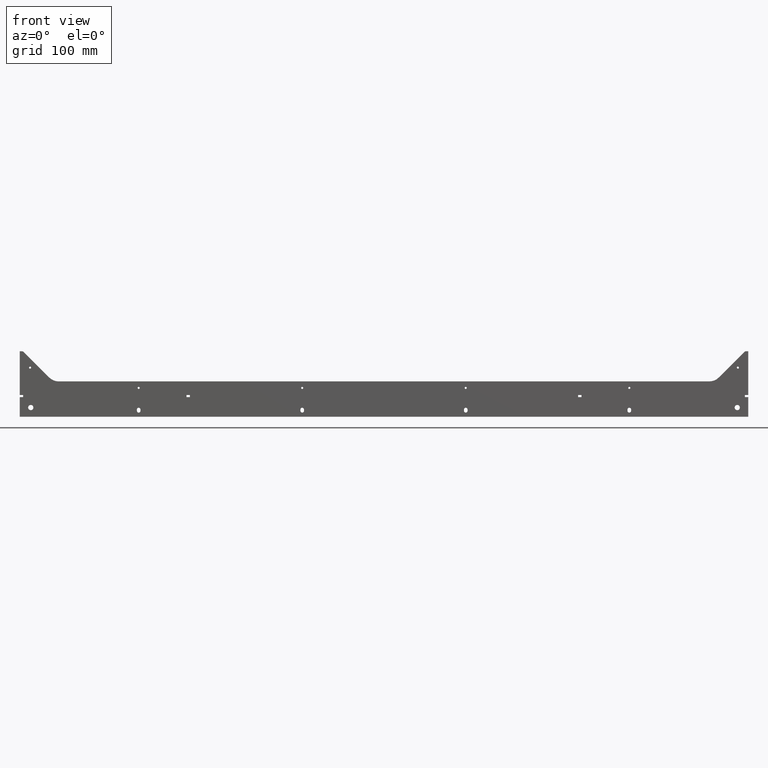
[diagram: clean part render]
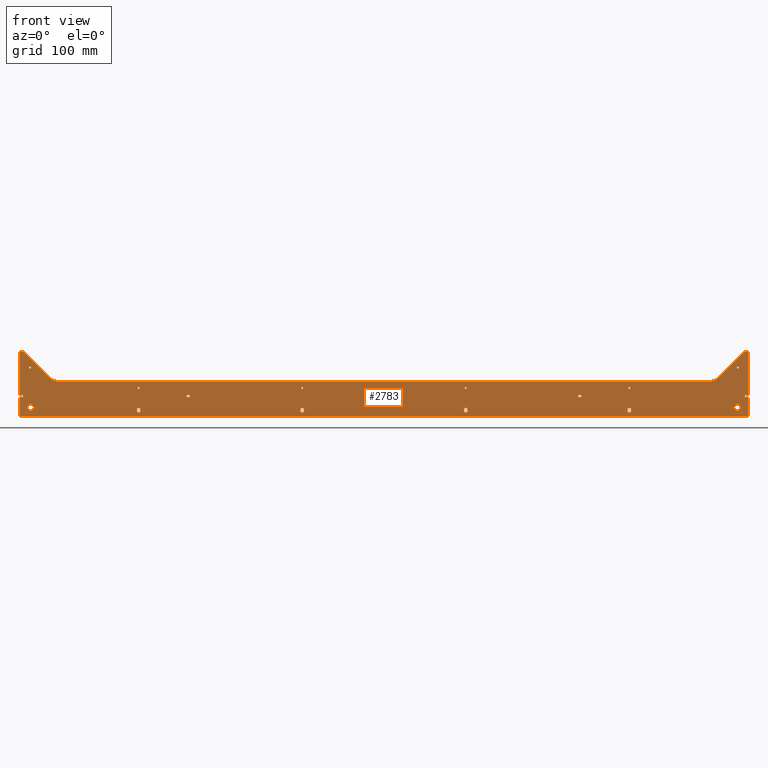
[diagram: same view with one face highlighted and labeled with its STEP entity id]
A machine part, front view. The second image highlights one B-rep face of the part: STEP entity #2783.
In plain terms, the highlighted planar face has unit normal (0, 1, 0).
Its self-contained STEP definition (entity closure, byte-faithful):
#1 = ORIENTED_EDGE ( 'NONE', *, *, #1935, .F. ) ;
#3 = DIRECTION ( 'NONE',  ( 1.000000000000000000, 0.000000000000000000, 0.000000000000000000 ) ) ;
#6 = ORIENTED_EDGE ( 'NONE', *, *, #419, .T. ) ;
#11 = FACE_BOUND ( 'NONE', #2842, .T. ) ;
#17 = CARTESIAN_POINT ( 'NONE',  ( 553.0464767191406281, -1091.305264068951146, -1200.899999999999864 ) ) ;
#30 = LINE ( 'NONE', #1099, #1881 ) ;
#32 = VERTEX_POINT ( 'NONE', #1494 ) ;
#33 = EDGE_CURVE ( 'NONE', #1542, #407, #2112, .T. ) ;
#34 = DIRECTION ( 'NONE',  ( 1.000000000000000000, 0.000000000000000000, 0.000000000000000000 ) ) ;
#43 = CIRCLE ( 'NONE', #494, 2.749999999999808153 ) ;
#47 = AXIS2_PLACEMENT_3D ( 'NONE', #3320, #2508, #934 ) ;
#53 = AXIS2_PLACEMENT_3D ( 'NONE', #1233, #2294, #3336 ) ;
#55 = CARTESIAN_POINT ( 'NONE',  ( -122.2500000000000853, -1091.305264068951146, -1224.999999999999091 ) ) ;
#71 = CIRCLE ( 'NONE', #53, 2.749999999999808153 ) ;
#73 = CARTESIAN_POINT ( 'NONE',  ( 497.5195647845589519, -1091.305264068951146, -1160.000000000000000 ) ) ;
#80 = VERTEX_POINT ( 'NONE', #621 ) ;
#82 = CARTESIAN_POINT ( 'NONE',  ( -540.9726412919829954, -1091.305264068951146, -1160.573330363768491 ) ) ;
#101 = VERTEX_POINT ( 'NONE', #2022 ) ;
#102 = CIRCLE ( 'NONE', #309, 5.200000000000093436 ) ;
#103 = CARTESIAN_POINT ( 'NONE',  ( 511.6617004082899598, -1091.305264068951146, -1174.142135623730610 ) ) ;
#104 = EDGE_CURVE ( 'NONE', #2498, #698, #3256, .T. ) ;
#108 = VERTEX_POINT ( 'NONE', #1687 ) ;
#118 = DIRECTION ( 'NONE',  ( 0.000000000000000000, 0.000000000000000000, 1.000000000000000000 ) ) ;
#127 = LINE ( 'NONE', #2469, #1553 ) ;
#139 = DIRECTION ( 'NONE',  ( -0.000000000000000000, -1.000000000000000000, -0.000000000000000000 ) ) ;
#146 = VERTEX_POINT ( 'NONE', #3125 ) ;
#148 = ORIENTED_EDGE ( 'NONE', *, *, #1367, .T. ) ;
#151 = CARTESIAN_POINT ( 'NONE',  ( -372.2500000000000568, -1091.305264068951146, -1224.999999999999091 ) ) ;
#166 = EDGE_CURVE ( 'NONE', #1137, #3142, #3106, .T. ) ;
#167 = VECTOR ( 'NONE', #980, 1000.000000000000000 ) ;
#169 = VERTEX_POINT ( 'NONE', #1569 ) ;
#170 = CARTESIAN_POINT ( 'NONE',  ( -556.8038360320209677, -1091.305264068951146, -1133.999999999999091 ) ) ;
#199 = DIRECTION ( 'NONE',  ( -1.000000000000000000, -0.000000000000000000, -0.000000000000000000 ) ) ;
#202 = CARTESIAN_POINT ( 'NONE',  ( 540.0000000000000000, -1091.305264068951146, -1225.200000000000045 ) ) ;
#209 = VERTEX_POINT ( 'NONE', #2867 ) ;
#210 = CIRCLE ( 'NONE', #1661, 2.749999999999808153 ) ;
#212 = VERTEX_POINT ( 'NONE', #1255 ) ;
#216 = AXIS2_PLACEMENT_3D ( 'NONE', #1160, #2520, #1961 ) ;
#224 = CARTESIAN_POINT ( 'NONE',  ( 553.0464767191406281, -1091.305264068951146, -1133.999999999999318 ) ) ;
#232 = ORIENTED_EDGE ( 'NONE', *, *, #741, .T. ) ;
#235 = EDGE_CURVE ( 'NONE', #2107, #707, #210, .T. ) ;
#237 = DIRECTION ( 'NONE',  ( 0.000000000000000000, 0.000000000000000000, -1.000000000000000000 ) ) ;
#242 = CARTESIAN_POINT ( 'NONE',  ( -301.8961408822090675, -1091.305264068951146, -1136.999999999999091 ) ) ;
#246 = VERTEX_POINT ( 'NONE', #2338 ) ;
#250 = EDGE_CURVE ( 'NONE', #1890, #2421, #2337, .T. ) ;
#263 = CARTESIAN_POINT ( 'NONE',  ( 553.0464767191406281, -1091.305264068951146, -1233.999999999999773 ) ) ;
#265 = CIRCLE ( 'NONE', #2060, 3.000000000000113687 ) ;
#274 = ORIENTED_EDGE ( 'NONE', *, *, #342, .T. ) ;
#279 = CARTESIAN_POINT ( 'NONE',  ( -553.0464767191404007, -1091.305264068951146, -1133.999999999999318 ) ) ;
#288 = EDGE_CURVE ( 'NONE', #2952, #2288, #567, .T. ) ;
#292 = CARTESIAN_POINT ( 'NONE',  ( 296.6961408822090789, -1091.305264068951146, -1204.100000000000136 ) ) ;
#309 = AXIS2_PLACEMENT_3D ( 'NONE', #2734, #2216, #3235 ) ;
#310 = VECTOR ( 'NONE', #2611, 1000.000000000000000 ) ;
#315 = VERTEX_POINT ( 'NONE', #292 ) ;
#319 = LINE ( 'NONE', #17, #1672 ) ;
#326 = VECTOR ( 'NONE', #1144, 1000.000000000000000 ) ;
#329 = EDGE_CURVE ( 'NONE', #707, #3190, #3435, .T. ) ;
#333 = CARTESIAN_POINT ( 'NONE',  ( 377.7499999999999432, -1091.305264068951146, -1224.999999999999091 ) ) ;
#334 = CARTESIAN_POINT ( 'NONE',  ( 511.6617004082899598, -1091.305264068951146, -1174.142135623730610 ) ) ;
#335 = LINE ( 'NONE', #662, #1727 ) ;
#338 = VERTEX_POINT ( 'NONE', #3207 ) ;
#342 = EDGE_CURVE ( 'NONE', #1023, #101, #1894, .T. ) ;
#346 = EDGE_CURVE ( 'NONE', #3190, #1273, #2278, .T. ) ;
#356 = CARTESIAN_POINT ( 'NONE',  ( -122.2500000000000853, -1091.305264068951146, -1224.999999999999091 ) ) ;
#358 = DIRECTION ( 'NONE',  ( -0.000000000000000000, -1.000000000000000000, -0.000000000000000000 ) ) ;
#359 = DIRECTION ( 'NONE',  ( -0.000000000000000000, -1.000000000000000000, -0.000000000000000000 ) ) ;
#360 = EDGE_CURVE ( 'NONE', #2330, #212, #1340, .T. ) ;
#368 = ORIENTED_EDGE ( 'NONE', *, *, #750, .T. ) ;
#370 = VECTOR ( 'NONE', #2872, 1000.000000000000000 ) ;
#387 = DIRECTION ( 'NONE',  ( -0.000000000000000000, -0.000000000000000000, -1.000000000000000000 ) ) ;
#403 = DIRECTION ( 'NONE',  ( -1.000000000000000000, -0.000000000000000000, -0.000000000000000000 ) ) ;
#404 = CARTESIAN_POINT ( 'NONE',  ( 372.2500000000000568, -1091.305264068951146, -1224.999999999999091 ) ) ;
#405 = VERTEX_POINT ( 'NONE', #2151 ) ;
#406 = DIRECTION ( 'NONE',  ( 0.000000000000000000, 0.000000000000000000, 1.000000000000000000 ) ) ;
#407 = VERTEX_POINT ( 'NONE', #812 ) ;
#416 = VERTEX_POINT ( 'NONE', #279 ) ;
#419 = EDGE_CURVE ( 'NONE', #1436, #927, #880, .T. ) ;
#422 = DIRECTION ( 'NONE',  ( -1.000000000000000000, -0.000000000000000000, -0.000000000000000000 ) ) ;
#427 = CARTESIAN_POINT ( 'NONE',  ( 377.7499999999999432, -1091.305264068951146, -1224.999999999999091 ) ) ;
#439 = DIRECTION ( 'NONE',  ( 0.000000000000000000, 0.000000000000000000, -1.000000000000000000 ) ) ;
#446 = EDGE_LOOP ( 'NONE', ( #2195, #2570, #1654, #2907, #1029 ) ) ;
#448 = EDGE_CURVE ( 'NONE', #472, #1798, #127, .T. ) ;
#449 = VERTEX_POINT ( 'NONE', #2019 ) ;
#472 = VERTEX_POINT ( 'NONE', #3071 ) ;
#475 = DIRECTION ( 'NONE',  ( 0.000000000000000000, 1.000000000000000000, 0.000000000000000000 ) ) ;
#477 = CARTESIAN_POINT ( 'NONE',  ( -125.0000000000000000, -1091.305264068951146, -1222.999999999999318 ) ) ;
#481 = VERTEX_POINT ( 'NONE', #1996 ) ;
#486 = VERTEX_POINT ( 'NONE', #1219 ) ;
#492 = CIRCLE ( 'NONE', #216, 1.600000000000267875 ) ;
#494 = AXIS2_PLACEMENT_3D ( 'NONE', #1526, #2353, #2296 ) ;
#496 = DIRECTION ( 'NONE',  ( -0.000000000000000000, -1.000000000000000000, -0.000000000000000000 ) ) ;
#499 = AXIS2_PLACEMENT_3D ( 'NONE', #773, #740, #439 ) ;
#503 = VERTEX_POINT ( 'NONE', #1740 ) ;
#516 = ORIENTED_EDGE ( 'NONE', *, *, #769, .T. ) ;
#518 = CARTESIAN_POINT ( 'NONE',  ( 375.0000000000000000, -1091.305264068951146, -1190.000000000000455 ) ) ;
#529 = EDGE_LOOP ( 'NONE', ( #784, #1195, #3439, #1641, #2565 ) ) ;
#530 = CARTESIAN_POINT ( 'NONE',  ( 122.2500000000000853, -1091.305264068951146, -1224.999999999999091 ) ) ;
#533 = ORIENTED_EDGE ( 'NONE', *, *, #1312, .T. ) ;
#535 = DIRECTION ( 'NONE',  ( 0.000000000000000000, 0.000000000000000000, 1.000000000000000000 ) ) ;
#542 = LINE ( 'NONE', #1858, #1291 ) ;
#546 = EDGE_CURVE ( 'NONE', #3418, #2958, #3377, .T. ) ;
#562 = EDGE_LOOP ( 'NONE', ( #3272, #3347 ) ) ;
#567 = LINE ( 'NONE', #1102, #1493 ) ;
#578 = EDGE_CURVE ( 'NONE', #2914, #405, #43, .T. ) ;
#601 = AXIS2_PLACEMENT_3D ( 'NONE', #818, #1882, #3446 ) ;
#602 = VERTEX_POINT ( 'NONE', #3371 ) ;
#604 = CIRCLE ( 'NONE', #2667, 2.749999999999808153 ) ;
#615 = VECTOR ( 'NONE', #2757, 1000.000000000000000 ) ;
#621 = CARTESIAN_POINT ( 'NONE',  ( -301.8961408822090675, -1091.305264068951146, -1200.900000000000091 ) ) ;
#626 = CARTESIAN_POINT ( 'NONE',  ( 553.0464767191406281, -1091.305264068951146, -1136.999999999999091 ) ) ;
#630 = DIRECTION ( 'NONE',  ( 0.000000000000000000, 0.000000000000000000, -1.000000000000000000 ) ) ;
#635 = CARTESIAN_POINT ( 'NONE',  ( 553.0464767191406281, -1091.305264068951146, -1204.100000000000136 ) ) ;
#639 = VERTEX_POINT ( 'NONE', #2035 ) ;
#646 = DIRECTION ( 'NONE',  ( -0.000000000000000000, -0.000000000000000000, -1.000000000000000000 ) ) ;
#660 = CIRCLE ( 'NONE', #2891, 2.749999999999808153 ) ;
#662 = CARTESIAN_POINT ( 'NONE',  ( -556.8038360320209677, -1091.305264068951146, -1136.999999999999091 ) ) ;
#664 = LINE ( 'NONE', #3314, #3324 ) ;
#666 = CARTESIAN_POINT ( 'NONE',  ( -497.5195647845589519, -1091.305264068951146, -1160.000000000000000 ) ) ;
#672 = ORIENTED_EDGE ( 'NONE', *, *, #2331, .T. ) ;
#675 = EDGE_CURVE ( 'NONE', #2817, #503, #998, .T. ) ;
#691 = ORIENTED_EDGE ( 'NONE', *, *, #2641, .T. ) ;
#698 = VERTEX_POINT ( 'NONE', #2589 ) ;
#707 = VERTEX_POINT ( 'NONE', #2554 ) ;
#710 = LINE ( 'NONE', #427, #167 ) ;
#717 = CIRCLE ( 'NONE', #1339, 1.600000000000267875 ) ;
#724 = DIRECTION ( 'NONE',  ( 0.000000000000000000, 0.000000000000000000, -1.000000000000000000 ) ) ;
#740 = DIRECTION ( 'NONE',  ( -0.000000000000000000, -1.000000000000000000, -0.000000000000000000 ) ) ;
#741 = EDGE_CURVE ( 'NONE', #80, #481, #822, .T. ) ;
#750 = EDGE_CURVE ( 'NONE', #449, #472, #1597, .T. ) ;
#758 = CARTESIAN_POINT ( 'NONE',  ( -511.6617004082899598, -1091.305264068951146, -1174.142135623730610 ) ) ;
#759 = VERTEX_POINT ( 'NONE', #2436 ) ;
#760 = LINE ( 'NONE', #1551, #2177 ) ;
#765 = CIRCLE ( 'NONE', #1660, 1.600000000000045830 ) ;
#769 = EDGE_CURVE ( 'NONE', #315, #449, #30, .T. ) ;
#773 = CARTESIAN_POINT ( 'NONE',  ( -375.0000000000000000, -1091.305264068951146, -1190.000000000000455 ) ) ;
#778 = DIRECTION ( 'NONE',  ( 0.000000000000000000, 1.000000000000000000, 0.000000000000000000 ) ) ;
#784 = ORIENTED_EDGE ( 'NONE', *, *, #2541, .T. ) ;
#789 = VERTEX_POINT ( 'NONE', #2918 ) ;
#793 = DIRECTION ( 'NONE',  ( 1.000000000000000000, 0.000000000000000000, 0.000000000000000000 ) ) ;
#797 = DIRECTION ( 'NONE',  ( 0.000000000000000000, 0.000000000000000000, 1.000000000000000000 ) ) ;
#805 = FACE_BOUND ( 'NONE', #1756, .T. ) ;
#812 = CARTESIAN_POINT ( 'NONE',  ( 540.0000000000000000, -1091.305264068951146, -1214.799999999999955 ) ) ;
#814 = EDGE_CURVE ( 'NONE', #503, #2817, #765, .T. ) ;
#818 = CARTESIAN_POINT ( 'NONE',  ( 125.0000000000000000, -1091.305264068951146, -1222.999999999999318 ) ) ;
#820 = VERTEX_POINT ( 'NONE', #3203 ) ;
#822 = LINE ( 'NONE', #1112, #1060 ) ;
#823 = DIRECTION ( 'NONE',  ( -0.000000000000000000, -1.000000000000000000, -0.000000000000000000 ) ) ;
#827 = CIRCLE ( 'NONE', #2118, 3.000000000000113687 ) ;
#850 = DIRECTION ( 'NONE',  ( 0.000000000000000000, 1.000000000000000000, 0.000000000000000000 ) ) ;
#852 = ORIENTED_EDGE ( 'NONE', *, *, #1554, .T. ) ;
#861 = CARTESIAN_POINT ( 'NONE',  ( -511.6617004082898461, -1091.305264068951146, -1174.142135623730610 ) ) ;
#862 = CARTESIAN_POINT ( 'NONE',  ( -125.0000000000000000, -1091.305264068951146, -1188.400000000000318 ) ) ;
#878 = VERTEX_POINT ( 'NONE', #930 ) ;
#880 = CIRCLE ( 'NONE', #2824, 20.00000000000001776 ) ;
#885 = VECTOR ( 'NONE', #3440, 1000.000000000000000 ) ;
#901 = DIRECTION ( 'NONE',  ( 0.000000000000000000, 0.000000000000000000, 1.000000000000000000 ) ) ;
#904 = LINE ( 'NONE', #1970, #615 ) ;
#906 = CARTESIAN_POINT ( 'NONE',  ( 553.0464767191406281, -1091.305264068951146, -1204.100000000000136 ) ) ;
#919 = EDGE_CURVE ( 'NONE', #108, #416, #827, .T. ) ;
#924 = ORIENTED_EDGE ( 'NONE', *, *, #1589, .T. ) ;
#927 = VERTEX_POINT ( 'NONE', #861 ) ;
#930 = CARTESIAN_POINT ( 'NONE',  ( -375.0000000000000000, -1091.305264068951146, -1220.249999999999545 ) ) ;
#934 = DIRECTION ( 'NONE',  ( 0.000000000000000000, 0.000000000000000000, -1.000000000000000000 ) ) ;
#939 = CARTESIAN_POINT ( 'NONE',  ( 301.8961408822090675, -1091.305264068951146, -1204.100000000000136 ) ) ;
#947 = LINE ( 'NONE', #1430, #2513 ) ;
#948 = VERTEX_POINT ( 'NONE', #1939 ) ;
#949 = VECTOR ( 'NONE', #3295, 1000.000000000000000 ) ;
#952 = CARTESIAN_POINT ( 'NONE',  ( 553.0464767191406281, -1091.305264068951146, -1180.000000000000000 ) ) ;
#954 = AXIS2_PLACEMENT_3D ( 'NONE', #1772, #475, #3139 ) ;
#962 = EDGE_LOOP ( 'NONE', ( #2313, #2307 ) ) ;
#965 = CARTESIAN_POINT ( 'NONE',  ( 497.5195647845589519, -1091.305264068951146, -1180.000000000000000 ) ) ;
#980 = DIRECTION ( 'NONE',  ( -0.000000000000000000, -0.000000000000000000, -1.000000000000000000 ) ) ;
#985 = EDGE_LOOP ( 'NONE', ( #1580, #2153 ) ) ;
#998 = CIRCLE ( 'NONE', #2709, 1.600000000000045830 ) ;
#1007 = VECTOR ( 'NONE', #422, 1000.000000000000000 ) ;
#1015 = DIRECTION ( 'NONE',  ( 0.000000000000000000, 0.000000000000000000, -1.000000000000000000 ) ) ;
#1016 = AXIS2_PLACEMENT_3D ( 'NONE', #2997, #139, #1162 ) ;
#1023 = VERTEX_POINT ( 'NONE', #2031 ) ;
#1029 = ORIENTED_EDGE ( 'NONE', *, *, #235, .T. ) ;
#1036 = CARTESIAN_POINT ( 'NONE',  ( -125.0000000000000000, -1091.305264068951146, -1190.000000000000455 ) ) ;
#1037 = LINE ( 'NONE', #2593, #1837 ) ;
#1051 = DIRECTION ( 'NONE',  ( -0.000000000000000000, -1.000000000000000000, -0.000000000000000000 ) ) ;
#1056 = ORIENTED_EDGE ( 'NONE', *, *, #2559, .F. ) ;
#1060 = VECTOR ( 'NONE', #793, 1000.000000000000000 ) ;
#1062 = CARTESIAN_POINT ( 'NONE',  ( 553.0464767191406281, -1091.305264068951146, -1136.999999999999091 ) ) ;
#1065 = ORIENTED_EDGE ( 'NONE', *, *, #675, .F. ) ;
#1070 = CIRCLE ( 'NONE', #1445, 5.200000000000093436 ) ;
#1071 = CARTESIAN_POINT ( 'NONE',  ( -125.0000000000000000, -1091.305264068951146, -1224.999999999999091 ) ) ;
#1076 = DIRECTION ( 'NONE',  ( 0.000000000000000000, 0.000000000000000000, 1.000000000000000000 ) ) ;
#1099 = CARTESIAN_POINT ( 'NONE',  ( 296.6961408822090789, -1091.305264068951146, -1136.999999999999091 ) ) ;
#1102 = CARTESIAN_POINT ( 'NONE',  ( 556.8038360320210813, -1091.305264068951146, -1136.999999999999091 ) ) ;
#1105 = VERTEX_POINT ( 'NONE', #151 ) ;
#1109 = ORIENTED_EDGE ( 'NONE', *, *, #2078, .T. ) ;
#1112 = CARTESIAN_POINT ( 'NONE',  ( 553.0464767191406281, -1091.305264068951146, -1200.900000000000091 ) ) ;
#1115 = VECTOR ( 'NONE', #2164, 1000.000000000000000 ) ;
#1123 = CIRCLE ( 'NONE', #47, 1.600000000000267875 ) ;
#1137 = VERTEX_POINT ( 'NONE', #1609 ) ;
#1144 = DIRECTION ( 'NONE',  ( -0.7071067811865425767, 0.000000000000000000, -0.7071067811865525687 ) ) ;
#1147 = DIRECTION ( 'NONE',  ( 0.000000000000000000, 0.000000000000000000, -1.000000000000000000 ) ) ;
#1149 = DIRECTION ( 'NONE',  ( 0.000000000000000000, 1.000000000000000000, -0.000000000000000000 ) ) ;
#1159 = EDGE_CURVE ( 'NONE', #3111, #1638, #2277, .T. ) ;
#1160 = CARTESIAN_POINT ( 'NONE',  ( -540.9726412919829954, -1091.305264068951146, -1158.973330363768127 ) ) ;
#1162 = DIRECTION ( 'NONE',  ( 0.000000000000000000, 0.000000000000000000, -1.000000000000000000 ) ) ;
#1176 = DIRECTION ( 'NONE',  ( 0.000000000000000000, 0.000000000000000000, -1.000000000000000000 ) ) ;
#1186 = EDGE_LOOP ( 'NONE', ( #3401, #2468, #1532, #2708, #3166, #148, #2033, #2926, #2253, #6, #1964, #2420, #2772, #2647, #691, #2692, #3017, #1812, #274, #2023 ) ) ;
#1187 = AXIS2_PLACEMENT_3D ( 'NONE', #1482, #2597, #1244 ) ;
#1194 = LINE ( 'NONE', #2248, #949 ) ;
#1195 = ORIENTED_EDGE ( 'NONE', *, *, #1584, .T. ) ;
#1203 = DIRECTION ( 'NONE',  ( -0.000000000000000000, -1.000000000000000000, -0.000000000000000000 ) ) ;
#1219 = CARTESIAN_POINT ( 'NONE',  ( 377.7499999999999432, -1091.305264068951146, -1222.999999999999318 ) ) ;
#1233 = CARTESIAN_POINT ( 'NONE',  ( 375.0000000000000000, -1091.305264068951146, -1222.999999999999318 ) ) ;
#1244 = DIRECTION ( 'NONE',  ( 0.000000000000000000, 0.000000000000000000, 1.000000000000000000 ) ) ;
#1255 = CARTESIAN_POINT ( 'NONE',  ( 122.2500000000000853, -1091.305264068951146, -1222.999999999999318 ) ) ;
#1261 = CARTESIAN_POINT ( 'NONE',  ( 556.8038360320210813, -1091.305264068951146, -1200.899999999999864 ) ) ;
#1273 = VERTEX_POINT ( 'NONE', #1578 ) ;
#1274 = EDGE_LOOP ( 'NONE', ( #924, #232, #852, #1109 ) ) ;
#1275 = LINE ( 'NONE', #1799, #885 ) ;
#1291 = VECTOR ( 'NONE', #2968, 1000.000000000000000 ) ;
#1297 = DIRECTION ( 'NONE',  ( -1.000000000000000000, -0.000000000000000000, -0.000000000000000000 ) ) ;
#1312 = EDGE_CURVE ( 'NONE', #759, #2330, #660, .T. ) ;
#1315 = ORIENTED_EDGE ( 'NONE', *, *, #1159, .T. ) ;
#1318 = FACE_BOUND ( 'NONE', #562, .T. ) ;
#1338 = AXIS2_PLACEMENT_3D ( 'NONE', #3403, #1605, #1345 ) ;
#1339 = AXIS2_PLACEMENT_3D ( 'NONE', #3417, #2889, #1015 ) ;
#1340 = LINE ( 'NONE', #530, #2393 ) ;
#1345 = DIRECTION ( 'NONE',  ( 0.000000000000000000, 0.000000000000000000, 1.000000000000000000 ) ) ;
#1347 = EDGE_CURVE ( 'NONE', #2428, #2346, #102, .T. ) ;
#1351 = DIRECTION ( 'NONE',  ( 0.000000000000000000, 1.000000000000000000, 0.000000000000000000 ) ) ;
#1352 = ORIENTED_EDGE ( 'NONE', *, *, #1815, .F. ) ;
#1356 = CARTESIAN_POINT ( 'NONE',  ( 125.0000000000000000, -1091.305264068951146, -1190.000000000000455 ) ) ;
#1357 = CARTESIAN_POINT ( 'NONE',  ( 122.2500000000000853, -1091.305264068951146, -1224.999999999999091 ) ) ;
#1359 = CARTESIAN_POINT ( 'NONE',  ( -377.7499999999999432, -1091.305264068951146, -1222.999999999999318 ) ) ;
#1367 = EDGE_CURVE ( 'NONE', #169, #2231, #265, .T. ) ;
#1369 = DIRECTION ( 'NONE',  ( 1.000000000000000000, 0.000000000000000000, 0.000000000000000000 ) ) ;
#1375 = VERTEX_POINT ( 'NONE', #1429 ) ;
#1381 = CARTESIAN_POINT ( 'NONE',  ( -125.0000000000000000, -1091.305264068951146, -1190.000000000000455 ) ) ;
#1405 = DIRECTION ( 'NONE',  ( -0.000000000000000000, -0.000000000000000000, -1.000000000000000000 ) ) ;
#1406 = LINE ( 'NONE', #404, #2517 ) ;
#1408 = VERTEX_POINT ( 'NONE', #2995 ) ;
#1411 = EDGE_CURVE ( 'NONE', #3039, #32, #335, .T. ) ;
#1429 = CARTESIAN_POINT ( 'NONE',  ( 375.0000000000000000, -1091.305264068951146, -1188.400000000000318 ) ) ;
#1430 = CARTESIAN_POINT ( 'NONE',  ( 551.6961408822093063, -1091.305264068951146, -1136.999999999999091 ) ) ;
#1436 = VERTEX_POINT ( 'NONE', #2769 ) ;
#1444 = VECTOR ( 'NONE', #1076, 1000.000000000000000 ) ;
#1445 = AXIS2_PLACEMENT_3D ( 'NONE', #3089, #359, #3342 ) ;
#1450 = DIRECTION ( 'NONE',  ( 0.000000000000000000, 1.000000000000000000, 0.000000000000000000 ) ) ;
#1451 = AXIS2_PLACEMENT_3D ( 'NONE', #3192, #2982, #1633 ) ;
#1476 = EDGE_CURVE ( 'NONE', #2047, #2902, #492, .T. ) ;
#1481 = ORIENTED_EDGE ( 'NONE', *, *, #814, .F. ) ;
#1482 = CARTESIAN_POINT ( 'NONE',  ( 125.0000000000000000, -1091.305264068951146, -1222.999999999999318 ) ) ;
#1492 = VECTOR ( 'NONE', #1369, 1000.000000000000000 ) ;
#1493 = VECTOR ( 'NONE', #797, 1000.000000000000000 ) ;
#1494 = CARTESIAN_POINT ( 'NONE',  ( -556.8038360320209677, -1091.305264068951146, -1200.900000000000091 ) ) ;
#1500 = AXIS2_PLACEMENT_3D ( 'NONE', #73, #1149, #2208 ) ;
#1503 = VECTOR ( 'NONE', #403, 1000.000000000000000 ) ;
#1513 = EDGE_CURVE ( 'NONE', #2598, #1375, #2557, .T. ) ;
#1526 = CARTESIAN_POINT ( 'NONE',  ( 375.0000000000000000, -1091.305264068951146, -1224.999999999999091 ) ) ;
#1528 = LINE ( 'NONE', #103, #326 ) ;
#1532 = ORIENTED_EDGE ( 'NONE', *, *, #2361, .T. ) ;
#1533 = DIRECTION ( 'NONE',  ( -0.000000000000000000, -1.000000000000000000, -0.000000000000000000 ) ) ;
#1542 = VERTEX_POINT ( 'NONE', #202 ) ;
#1547 = LINE ( 'NONE', #758, #310 ) ;
#1551 = CARTESIAN_POINT ( 'NONE',  ( -377.7499999999999432, -1091.305264068951146, -1224.999999999999091 ) ) ;
#1553 = VECTOR ( 'NONE', #1405, 1000.000000000000000 ) ;
#1554 = EDGE_CURVE ( 'NONE', #481, #1408, #1275, .T. ) ;
#1561 = EDGE_CURVE ( 'NONE', #2881, #1988, #760, .T. ) ;
#1569 = CARTESIAN_POINT ( 'NONE',  ( 553.0464767191406281, -1091.305264068951146, -1133.999999999999091 ) ) ;
#1571 = ORIENTED_EDGE ( 'NONE', *, *, #33, .F. ) ;
#1578 = CARTESIAN_POINT ( 'NONE',  ( -127.7499999999999147, -1091.305264068951146, -1224.999999999999091 ) ) ;
#1580 = ORIENTED_EDGE ( 'NONE', *, *, #2378, .F. ) ;
#1584 = EDGE_CURVE ( 'NONE', #1105, #2881, #2829, .T. ) ;
#1587 = DIRECTION ( 'NONE',  ( -0.000000000000000000, -1.000000000000000000, -0.000000000000000000 ) ) ;
#1589 = EDGE_CURVE ( 'NONE', #602, #80, #3182, .T. ) ;
#1597 = LINE ( 'NONE', #2189, #1492 ) ;
#1605 = DIRECTION ( 'NONE',  ( 0.000000000000000000, 1.000000000000000000, 0.000000000000000000 ) ) ;
#1609 = CARTESIAN_POINT ( 'NONE',  ( 556.8038360320210813, -1091.305264068951146, -1204.099999999999909 ) ) ;
#1614 = CARTESIAN_POINT ( 'NONE',  ( -540.0000000000000000, -1091.305264068951146, -1214.799999999999955 ) ) ;
#1615 = EDGE_LOOP ( 'NONE', ( #1729, #533, #2836, #1652, #1315 ) ) ;
#1620 = EDGE_CURVE ( 'NONE', #146, #1023, #2380, .T. ) ;
#1629 = EDGE_CURVE ( 'NONE', #416, #3039, #2614, .T. ) ;
#1633 = DIRECTION ( 'NONE',  ( 0.000000000000000000, 0.000000000000000000, 1.000000000000000000 ) ) ;
#1638 = VERTEX_POINT ( 'NONE', #2100 ) ;
#1641 = ORIENTED_EDGE ( 'NONE', *, *, #2219, .T. ) ;
#1652 = ORIENTED_EDGE ( 'NONE', *, *, #3044, .T. ) ;
#1654 = ORIENTED_EDGE ( 'NONE', *, *, #3189, .T. ) ;
#1660 = AXIS2_PLACEMENT_3D ( 'NONE', #1356, #2701, #1841 ) ;
#1661 = AXIS2_PLACEMENT_3D ( 'NONE', #477, #778, #2888 ) ;
#1672 = VECTOR ( 'NONE', #3, 1000.000000000000000 ) ;
#1677 = AXIS2_PLACEMENT_3D ( 'NONE', #1711, #1450, #118 ) ;
#1683 = DIRECTION ( 'NONE',  ( -0.000000000000000000, 1.000000000000000000, -0.000000000000000000 ) ) ;
#1687 = CARTESIAN_POINT ( 'NONE',  ( -550.9251563755809684, -1091.305264068951146, -1134.878679656439544 ) ) ;
#1692 = DIRECTION ( 'NONE',  ( 0.000000000000000000, 1.000000000000000000, 0.000000000000000000 ) ) ;
#1694 = EDGE_LOOP ( 'NONE', ( #1056, #3068 ) ) ;
#1705 = CARTESIAN_POINT ( 'NONE',  ( -375.0000000000000000, -1091.305264068951146, -1222.999999999999318 ) ) ;
#1711 = CARTESIAN_POINT ( 'NONE',  ( -125.0000000000000000, -1091.305264068951146, -1222.999999999999318 ) ) ;
#1725 = CARTESIAN_POINT ( 'NONE',  ( -551.6961408822093063, -1091.305264068951146, -1136.999999999999091 ) ) ;
#1727 = VECTOR ( 'NONE', #646, 1000.000000000000000 ) ;
#1729 = ORIENTED_EDGE ( 'NONE', *, *, #1839, .T. ) ;
#1732 = EDGE_LOOP ( 'NONE', ( #2855, #1801, #3317, #2720, #672 ) ) ;
#1736 = CARTESIAN_POINT ( 'NONE',  ( 540.9726412919829954, -1091.305264068951146, -1157.373330363767991 ) ) ;
#1740 = CARTESIAN_POINT ( 'NONE',  ( 125.0000000000000000, -1091.305264068951146, -1188.400000000000318 ) ) ;
#1756 = EDGE_LOOP ( 'NONE', ( #1352, #1571 ) ) ;
#1771 = DIRECTION ( 'NONE',  ( -0.000000000000000000, -1.000000000000000000, -0.000000000000000000 ) ) ;
#1772 = CARTESIAN_POINT ( 'NONE',  ( -375.0000000000000000, -1091.305264068951146, -1222.999999999999318 ) ) ;
#1773 = EDGE_CURVE ( 'NONE', #338, #146, #2797, .T. ) ;
#1774 = AXIS2_PLACEMENT_3D ( 'NONE', #2758, #358, #3074 ) ;
#1780 = CARTESIAN_POINT ( 'NONE',  ( -372.2500000000000568, -1091.305264068951146, -1222.999999999999318 ) ) ;
#1782 = VECTOR ( 'NONE', #387, 1000.000000000000000 ) ;
#1792 = EDGE_CURVE ( 'NONE', #878, #2972, #604, .T. ) ;
#1798 = VERTEX_POINT ( 'NONE', #939 ) ;
#1799 = CARTESIAN_POINT ( 'NONE',  ( -296.6961408822090789, -1091.305264068951146, -1136.999999999999091 ) ) ;
#1801 = ORIENTED_EDGE ( 'NONE', *, *, #578, .T. ) ;
#1812 = ORIENTED_EDGE ( 'NONE', *, *, #1620, .T. ) ;
#1813 = CARTESIAN_POINT ( 'NONE',  ( -556.8038360320209677, -1091.305264068951146, -1136.999999999999091 ) ) ;
#1815 = EDGE_CURVE ( 'NONE', #407, #1542, #1070, .T. ) ;
#1824 = DIRECTION ( 'NONE',  ( -1.000000000000000000, -0.000000000000000000, -0.000000000000000000 ) ) ;
#1837 = VECTOR ( 'NONE', #199, 1000.000000000000000 ) ;
#1839 = EDGE_CURVE ( 'NONE', #1638, #759, #1194, .T. ) ;
#1840 = VECTOR ( 'NONE', #2240, 1000.000000000000000 ) ;
#1841 = DIRECTION ( 'NONE',  ( 0.000000000000000000, 0.000000000000000000, -1.000000000000000000 ) ) ;
#1853 = FACE_BOUND ( 'NONE', #1615, .T. ) ;
#1855 = EDGE_CURVE ( 'NONE', #820, #338, #3037, .T. ) ;
#1858 = CARTESIAN_POINT ( 'NONE',  ( 553.0464767191406281, -1091.305264068951146, -1133.999999999999091 ) ) ;
#1861 = CARTESIAN_POINT ( 'NONE',  ( -125.0000000000000000, -1091.305264068951146, -1191.600000000000364 ) ) ;
#1867 = FACE_BOUND ( 'NONE', #3005, .T. ) ;
#1873 = EDGE_CURVE ( 'NONE', #927, #108, #1547, .T. ) ;
#1876 = EDGE_CURVE ( 'NONE', #2902, #2047, #717, .T. ) ;
#1881 = VECTOR ( 'NONE', #2128, 1000.000000000000000 ) ;
#1882 = DIRECTION ( 'NONE',  ( 0.000000000000000000, 1.000000000000000000, 0.000000000000000000 ) ) ;
#1890 = VERTEX_POINT ( 'NONE', #1861 ) ;
#1891 = AXIS2_PLACEMENT_3D ( 'NONE', #518, #1533, #2395 ) ;
#1894 = LINE ( 'NONE', #263, #3433 ) ;
#1917 = EDGE_CURVE ( 'NONE', #1798, #315, #1037, .T. ) ;
#1920 = FACE_BOUND ( 'NONE', #446, .T. ) ;
#1922 = EDGE_CURVE ( 'NONE', #2106, #789, #2834, .T. ) ;
#1935 = EDGE_CURVE ( 'NONE', #2346, #2428, #2284, .T. ) ;
#1939 = CARTESIAN_POINT ( 'NONE',  ( 375.0000000000000000, -1091.305264068951146, -1220.249999999999545 ) ) ;
#1947 = AXIS2_PLACEMENT_3D ( 'NONE', #2376, #1587, #3436 ) ;
#1961 = DIRECTION ( 'NONE',  ( 0.000000000000000000, 0.000000000000000000, -1.000000000000000000 ) ) ;
#1964 = ORIENTED_EDGE ( 'NONE', *, *, #1873, .T. ) ;
#1968 = LINE ( 'NONE', #635, #1503 ) ;
#1970 = CARTESIAN_POINT ( 'NONE',  ( -127.7499999999999147, -1091.305264068951146, -1224.999999999999091 ) ) ;
#1980 = CARTESIAN_POINT ( 'NONE',  ( 556.8038360320210813, -1091.305264068951146, -1136.999999999999091 ) ) ;
#1987 = CARTESIAN_POINT ( 'NONE',  ( 540.0000000000000000, -1091.305264068951146, -1220.000000000000000 ) ) ;
#1988 = VERTEX_POINT ( 'NONE', #1359 ) ;
#1996 = CARTESIAN_POINT ( 'NONE',  ( -296.6961408822090789, -1091.305264068951146, -1200.900000000000091 ) ) ;
#2002 = DIRECTION ( 'NONE',  ( 0.000000000000000000, 1.000000000000000000, 0.000000000000000000 ) ) ;
#2009 = DIRECTION ( 'NONE',  ( 0.000000000000000000, 0.000000000000000000, 1.000000000000000000 ) ) ;
#2019 = CARTESIAN_POINT ( 'NONE',  ( 296.6961408822090789, -1091.305264068951146, -1200.900000000000091 ) ) ;
#2020 = CARTESIAN_POINT ( 'NONE',  ( -125.0000000000000000, -1091.305264068951146, -1220.249999999999545 ) ) ;
#2022 = CARTESIAN_POINT ( 'NONE',  ( 556.8038360320210813, -1091.305264068951146, -1233.999999999999773 ) ) ;
#2023 = ORIENTED_EDGE ( 'NONE', *, *, #2494, .T. ) ;
#2031 = CARTESIAN_POINT ( 'NONE',  ( -556.8038360320209677, -1091.305264068951146, -1233.999999999999773 ) ) ;
#2033 = ORIENTED_EDGE ( 'NONE', *, *, #3374, .T. ) ;
#2035 = CARTESIAN_POINT ( 'NONE',  ( 551.6961408822093063, -1091.305264068951146, -1200.899999999999864 ) ) ;
#2044 = DIRECTION ( 'NONE',  ( 1.000000000000000000, 0.000000000000000000, 0.000000000000000000 ) ) ;
#2047 = VERTEX_POINT ( 'NONE', #2193 ) ;
#2049 = CARTESIAN_POINT ( 'NONE',  ( 556.8038360320210813, -1091.305264068951146, -1133.999999999999091 ) ) ;
#2054 = VECTOR ( 'NONE', #1824, 1000.000000000000000 ) ;
#2060 = AXIS2_PLACEMENT_3D ( 'NONE', #626, #2763, #1176 ) ;
#2066 = CARTESIAN_POINT ( 'NONE',  ( 553.0464767191406281, -1091.305264068951146, -1200.900000000000091 ) ) ;
#2078 = EDGE_CURVE ( 'NONE', #1408, #602, #1968, .T. ) ;
#2098 = EDGE_CURVE ( 'NONE', #698, #2498, #1123, .T. ) ;
#2100 = CARTESIAN_POINT ( 'NONE',  ( 127.7499999999999147, -1091.305264068951146, -1222.999999999999318 ) ) ;
#2106 = VERTEX_POINT ( 'NONE', #2540 ) ;
#2107 = VERTEX_POINT ( 'NONE', #2020 ) ;
#2112 = CIRCLE ( 'NONE', #2273, 5.200000000000093436 ) ;
#2114 = AXIS2_PLACEMENT_3D ( 'NONE', #1036, #496, #237 ) ;
#2118 = AXIS2_PLACEMENT_3D ( 'NONE', #2521, #1203, #630 ) ;
#2128 = DIRECTION ( 'NONE',  ( 0.000000000000000000, 0.000000000000000000, 1.000000000000000000 ) ) ;
#2132 = DIRECTION ( 'NONE',  ( 0.000000000000000000, 0.000000000000000000, 1.000000000000000000 ) ) ;
#2151 = CARTESIAN_POINT ( 'NONE',  ( 372.2500000000000568, -1091.305264068951146, -1224.999999999999091 ) ) ;
#2153 = ORIENTED_EDGE ( 'NONE', *, *, #250, .F. ) ;
#2157 = FACE_BOUND ( 'NONE', #985, .T. ) ;
#2162 = CARTESIAN_POINT ( 'NONE',  ( -540.0000000000000000, -1091.305264068951146, -1225.200000000000045 ) ) ;
#2164 = DIRECTION ( 'NONE',  ( -0.000000000000000000, -0.000000000000000000, -1.000000000000000000 ) ) ;
#2177 = VECTOR ( 'NONE', #535, 1000.000000000000000 ) ;
#2178 = EDGE_CURVE ( 'NONE', #789, #2106, #2452, .T. ) ;
#2189 = CARTESIAN_POINT ( 'NONE',  ( 553.0464767191406281, -1091.305264068951146, -1200.900000000000091 ) ) ;
#2192 = DIRECTION ( 'NONE',  ( 0.000000000000000000, 0.000000000000000000, 1.000000000000000000 ) ) ;
#2193 = CARTESIAN_POINT ( 'NONE',  ( -540.9726412919829954, -1091.305264068951146, -1157.373330363767991 ) ) ;
#2195 = ORIENTED_EDGE ( 'NONE', *, *, #329, .T. ) ;
#2208 = DIRECTION ( 'NONE',  ( 0.000000000000000000, 0.000000000000000000, 1.000000000000000000 ) ) ;
#2216 = DIRECTION ( 'NONE',  ( -0.000000000000000000, -1.000000000000000000, -0.000000000000000000 ) ) ;
#2219 = EDGE_CURVE ( 'NONE', #1988, #878, #3382, .T. ) ;
#2231 = VERTEX_POINT ( 'NONE', #3394 ) ;
#2234 = CARTESIAN_POINT ( 'NONE',  ( 125.0000000000000000, -1091.305264068951146, -1224.999999999999091 ) ) ;
#2240 = DIRECTION ( 'NONE',  ( 0.000000000000000000, 0.000000000000000000, 1.000000000000000000 ) ) ;
#2248 = CARTESIAN_POINT ( 'NONE',  ( 127.7499999999999147, -1091.305264068951146, -1224.999999999999091 ) ) ;
#2253 = ORIENTED_EDGE ( 'NONE', *, *, #2473, .T. ) ;
#2273 = AXIS2_PLACEMENT_3D ( 'NONE', #1987, #3277, #2816 ) ;
#2277 = CIRCLE ( 'NONE', #601, 2.749999999999808153 ) ;
#2278 = CIRCLE ( 'NONE', #3210, 2.749999999999808153 ) ;
#2284 = CIRCLE ( 'NONE', #1947, 5.200000000000093436 ) ;
#2288 = VERTEX_POINT ( 'NONE', #2049 ) ;
#2291 = CIRCLE ( 'NONE', #1016, 1.600000000000045830 ) ;
#2294 = DIRECTION ( 'NONE',  ( 0.000000000000000000, 1.000000000000000000, 0.000000000000000000 ) ) ;
#2296 = DIRECTION ( 'NONE',  ( 0.000000000000000000, 0.000000000000000000, 1.000000000000000000 ) ) ;
#2307 = ORIENTED_EDGE ( 'NONE', *, *, #1876, .F. ) ;
#2313 = ORIENTED_EDGE ( 'NONE', *, *, #1476, .F. ) ;
#2326 = EDGE_CURVE ( 'NONE', #2288, #169, #542, .T. ) ;
#2330 = VERTEX_POINT ( 'NONE', #1357 ) ;
#2331 = EDGE_CURVE ( 'NONE', #948, #486, #2564, .T. ) ;
#2337 = CIRCLE ( 'NONE', #2114, 1.600000000000045830 ) ;
#2338 = CARTESIAN_POINT ( 'NONE',  ( -127.7499999999999147, -1091.305264068951146, -1222.999999999999318 ) ) ;
#2346 = VERTEX_POINT ( 'NONE', #1614 ) ;
#2353 = DIRECTION ( 'NONE',  ( 0.000000000000000000, 1.000000000000000000, 0.000000000000000000 ) ) ;
#2360 = CARTESIAN_POINT ( 'NONE',  ( -375.0000000000000000, -1091.305264068951146, -1190.000000000000455 ) ) ;
#2361 = EDGE_CURVE ( 'NONE', #639, #2952, #319, .T. ) ;
#2376 = CARTESIAN_POINT ( 'NONE',  ( -540.0000000000000000, -1091.305264068951146, -1220.000000000000000 ) ) ;
#2378 = EDGE_CURVE ( 'NONE', #2421, #1890, #2405, .T. ) ;
#2380 = LINE ( 'NONE', #1813, #370 ) ;
#2384 = CARTESIAN_POINT ( 'NONE',  ( 125.0000000000000000, -1091.305264068951146, -1191.600000000000364 ) ) ;
#2393 = VECTOR ( 'NONE', #2192, 1000.000000000000000 ) ;
#2395 = DIRECTION ( 'NONE',  ( 0.000000000000000000, 0.000000000000000000, -1.000000000000000000 ) ) ;
#2399 = FACE_BOUND ( 'NONE', #1274, .T. ) ;
#2405 = CIRCLE ( 'NONE', #3110, 1.600000000000045830 ) ;
#2420 = ORIENTED_EDGE ( 'NONE', *, *, #919, .T. ) ;
#2421 = VERTEX_POINT ( 'NONE', #862 ) ;
#2428 = VERTEX_POINT ( 'NONE', #2162 ) ;
#2431 = FACE_BOUND ( 'NONE', #962, .T. ) ;
#2436 = CARTESIAN_POINT ( 'NONE',  ( 127.7499999999999147, -1091.305264068951146, -1224.999999999999091 ) ) ;
#2447 = FACE_BOUND ( 'NONE', #1732, .T. ) ;
#2452 = CIRCLE ( 'NONE', #499, 1.600000000000045830 ) ;
#2468 = ORIENTED_EDGE ( 'NONE', *, *, #2832, .T. ) ;
#2469 = CARTESIAN_POINT ( 'NONE',  ( 301.8961408822090675, -1091.305264068951146, -1136.999999999999091 ) ) ;
#2473 = EDGE_CURVE ( 'NONE', #2958, #1436, #3251, .T. ) ;
#2491 = DIRECTION ( 'NONE',  ( 0.000000000000000000, 0.000000000000000000, 1.000000000000000000 ) ) ;
#2494 = EDGE_CURVE ( 'NONE', #101, #1137, #2791, .T. ) ;
#2498 = VERTEX_POINT ( 'NONE', #1736 ) ;
#2503 = CARTESIAN_POINT ( 'NONE',  ( 375.0000000000000000, -1091.305264068951146, -1191.600000000000364 ) ) ;
#2508 = DIRECTION ( 'NONE',  ( -0.000000000000000000, -1.000000000000000000, -0.000000000000000000 ) ) ;
#2513 = VECTOR ( 'NONE', #2009, 1000.000000000000000 ) ;
#2517 = VECTOR ( 'NONE', #2491, 1000.000000000000000 ) ;
#2520 = DIRECTION ( 'NONE',  ( -0.000000000000000000, -1.000000000000000000, -0.000000000000000000 ) ) ;
#2521 = CARTESIAN_POINT ( 'NONE',  ( -553.0464767191406281, -1091.305264068951146, -1136.999999999999091 ) ) ;
#2540 = CARTESIAN_POINT ( 'NONE',  ( -375.0000000000000000, -1091.305264068951146, -1191.600000000000364 ) ) ;
#2541 = EDGE_CURVE ( 'NONE', #2972, #1105, #664, .T. ) ;
#2554 = CARTESIAN_POINT ( 'NONE',  ( -122.2500000000000853, -1091.305264068951146, -1222.999999999999318 ) ) ;
#2557 = CIRCLE ( 'NONE', #1891, 1.600000000000045830 ) ;
#2559 = EDGE_CURVE ( 'NONE', #1375, #2598, #2291, .T. ) ;
#2561 = ORIENTED_EDGE ( 'NONE', *, *, #1347, .F. ) ;
#2564 = CIRCLE ( 'NONE', #1451, 2.749999999999808153 ) ;
#2565 = ORIENTED_EDGE ( 'NONE', *, *, #1792, .T. ) ;
#2570 = ORIENTED_EDGE ( 'NONE', *, *, #346, .T. ) ;
#2589 = CARTESIAN_POINT ( 'NONE',  ( 540.9726412919829954, -1091.305264068951146, -1160.573330363768491 ) ) ;
#2593 = CARTESIAN_POINT ( 'NONE',  ( 553.0464767191406281, -1091.305264068951146, -1204.100000000000136 ) ) ;
#2597 = DIRECTION ( 'NONE',  ( 0.000000000000000000, 1.000000000000000000, 0.000000000000000000 ) ) ;
#2598 = VERTEX_POINT ( 'NONE', #2503 ) ;
#2611 = DIRECTION ( 'NONE',  ( -0.7071067811865425767, -0.000000000000000000, 0.7071067811865525687 ) ) ;
#2614 = LINE ( 'NONE', #224, #2774 ) ;
#2621 = VECTOR ( 'NONE', #3031, 1000.000000000000000 ) ;
#2641 = EDGE_CURVE ( 'NONE', #32, #820, #3351, .T. ) ;
#2642 = CARTESIAN_POINT ( 'NONE',  ( 553.0464767191406281, -1091.305264068951146, -1204.099999999999909 ) ) ;
#2647 = ORIENTED_EDGE ( 'NONE', *, *, #1411, .T. ) ;
#2665 = FACE_BOUND ( 'NONE', #3352, .T. ) ;
#2667 = AXIS2_PLACEMENT_3D ( 'NONE', #1705, #2002, #406 ) ;
#2673 = AXIS2_PLACEMENT_3D ( 'NONE', #1062, #1351, #2684 ) ;
#2675 = CIRCLE ( 'NONE', #1187, 2.749999999999808153 ) ;
#2684 = DIRECTION ( 'NONE',  ( 0.000000000000000000, 0.000000000000000000, 1.000000000000000000 ) ) ;
#2686 = EDGE_CURVE ( 'NONE', #209, #948, #71, .T. ) ;
#2692 = ORIENTED_EDGE ( 'NONE', *, *, #1855, .T. ) ;
#2701 = DIRECTION ( 'NONE',  ( -0.000000000000000000, -1.000000000000000000, -0.000000000000000000 ) ) ;
#2708 = ORIENTED_EDGE ( 'NONE', *, *, #288, .T. ) ;
#2709 = AXIS2_PLACEMENT_3D ( 'NONE', #3138, #1771, #2812 ) ;
#2720 = ORIENTED_EDGE ( 'NONE', *, *, #2686, .T. ) ;
#2727 = CIRCLE ( 'NONE', #1677, 2.749999999999808153 ) ;
#2734 = CARTESIAN_POINT ( 'NONE',  ( -540.0000000000000000, -1091.305264068951146, -1220.000000000000000 ) ) ;
#2757 = DIRECTION ( 'NONE',  ( 0.000000000000000000, 0.000000000000000000, 1.000000000000000000 ) ) ;
#2758 = CARTESIAN_POINT ( 'NONE',  ( 540.9726412919829954, -1091.305264068951146, -1158.973330363768127 ) ) ;
#2763 = DIRECTION ( 'NONE',  ( -0.000000000000000000, -1.000000000000000000, -0.000000000000000000 ) ) ;
#2769 = CARTESIAN_POINT ( 'NONE',  ( -497.5195647845588383, -1091.305264068951146, -1180.000000000000000 ) ) ;
#2771 = DIRECTION ( 'NONE',  ( -0.000000000000000000, -0.000000000000000000, -1.000000000000000000 ) ) ;
#2772 = ORIENTED_EDGE ( 'NONE', *, *, #1629, .T. ) ;
#2774 = VECTOR ( 'NONE', #1297, 1000.000000000000000 ) ;
#2783 = ADVANCED_FACE ( 'NONE', ( #1853, #2447, #1920, #3447, #2399, #2963, #3186, #805, #2157, #1318, #11, #2945, #1867, #2431, #2665 ), #3426, .F. ) ;
#2791 = LINE ( 'NONE', #1980, #1840 ) ;
#2797 = LINE ( 'NONE', #906, #1007 ) ;
#2812 = DIRECTION ( 'NONE',  ( 0.000000000000000000, 0.000000000000000000, -1.000000000000000000 ) ) ;
#2816 = DIRECTION ( 'NONE',  ( 0.000000000000000000, 0.000000000000000000, -1.000000000000000000 ) ) ;
#2817 = VERTEX_POINT ( 'NONE', #2384 ) ;
#2820 = ORIENTED_EDGE ( 'NONE', *, *, #1922, .F. ) ;
#2823 = ORIENTED_EDGE ( 'NONE', *, *, #1917, .T. ) ;
#2824 = AXIS2_PLACEMENT_3D ( 'NONE', #666, #1683, #901 ) ;
#2829 = CIRCLE ( 'NONE', #1338, 2.749999999999808153 ) ;
#2832 = EDGE_CURVE ( 'NONE', #3142, #639, #947, .T. ) ;
#2834 = CIRCLE ( 'NONE', #2999, 1.600000000000045830 ) ;
#2836 = ORIENTED_EDGE ( 'NONE', *, *, #360, .T. ) ;
#2842 = EDGE_LOOP ( 'NONE', ( #1481, #1065 ) ) ;
#2855 = ORIENTED_EDGE ( 'NONE', *, *, #2960, .T. ) ;
#2867 = CARTESIAN_POINT ( 'NONE',  ( 372.2500000000000568, -1091.305264068951146, -1222.999999999999318 ) ) ;
#2872 = DIRECTION ( 'NONE',  ( -0.000000000000000000, -0.000000000000000000, -1.000000000000000000 ) ) ;
#2874 = ORIENTED_EDGE ( 'NONE', *, *, #448, .T. ) ;
#2881 = VERTEX_POINT ( 'NONE', #3246 ) ;
#2888 = DIRECTION ( 'NONE',  ( 0.000000000000000000, 0.000000000000000000, 1.000000000000000000 ) ) ;
#2889 = DIRECTION ( 'NONE',  ( -0.000000000000000000, -1.000000000000000000, -0.000000000000000000 ) ) ;
#2891 = AXIS2_PLACEMENT_3D ( 'NONE', #2234, #1692, #3281 ) ;
#2902 = VERTEX_POINT ( 'NONE', #82 ) ;
#2907 = ORIENTED_EDGE ( 'NONE', *, *, #2938, .T. ) ;
#2914 = VERTEX_POINT ( 'NONE', #333 ) ;
#2918 = CARTESIAN_POINT ( 'NONE',  ( -375.0000000000000000, -1091.305264068951146, -1188.400000000000318 ) ) ;
#2926 = ORIENTED_EDGE ( 'NONE', *, *, #546, .T. ) ;
#2938 = EDGE_CURVE ( 'NONE', #246, #2107, #2727, .T. ) ;
#2945 = FACE_BOUND ( 'NONE', #1694, .T. ) ;
#2952 = VERTEX_POINT ( 'NONE', #1261 ) ;
#2958 = VERTEX_POINT ( 'NONE', #965 ) ;
#2960 = EDGE_CURVE ( 'NONE', #486, #2914, #710, .T. ) ;
#2963 = FACE_OUTER_BOUND ( 'NONE', #1186, .T. ) ;
#2968 = DIRECTION ( 'NONE',  ( -1.000000000000000000, -0.000000000000000000, -0.000000000000000000 ) ) ;
#2972 = VERTEX_POINT ( 'NONE', #1780 ) ;
#2982 = DIRECTION ( 'NONE',  ( 0.000000000000000000, 1.000000000000000000, 0.000000000000000000 ) ) ;
#2995 = CARTESIAN_POINT ( 'NONE',  ( -296.6961408822090789, -1091.305264068951146, -1204.100000000000136 ) ) ;
#2997 = CARTESIAN_POINT ( 'NONE',  ( 375.0000000000000000, -1091.305264068951146, -1190.000000000000455 ) ) ;
#2999 = AXIS2_PLACEMENT_3D ( 'NONE', #2360, #1051, #724 ) ;
#3005 = EDGE_LOOP ( 'NONE', ( #3159, #2820 ) ) ;
#3017 = ORIENTED_EDGE ( 'NONE', *, *, #1773, .T. ) ;
#3031 = DIRECTION ( 'NONE',  ( -1.000000000000000000, -0.000000000000000000, -0.000000000000000000 ) ) ;
#3037 = LINE ( 'NONE', #1725, #1782 ) ;
#3039 = VERTEX_POINT ( 'NONE', #170 ) ;
#3044 = EDGE_CURVE ( 'NONE', #212, #3111, #2675, .T. ) ;
#3068 = ORIENTED_EDGE ( 'NONE', *, *, #1513, .F. ) ;
#3071 = CARTESIAN_POINT ( 'NONE',  ( 301.8961408822090675, -1091.305264068951146, -1200.900000000000091 ) ) ;
#3074 = DIRECTION ( 'NONE',  ( 0.000000000000000000, 0.000000000000000000, -1.000000000000000000 ) ) ;
#3089 = CARTESIAN_POINT ( 'NONE',  ( 540.0000000000000000, -1091.305264068951146, -1220.000000000000000 ) ) ;
#3098 = EDGE_CURVE ( 'NONE', #405, #209, #1406, .T. ) ;
#3106 = LINE ( 'NONE', #2642, #2054 ) ;
#3110 = AXIS2_PLACEMENT_3D ( 'NONE', #1381, #823, #1147 ) ;
#3111 = VERTEX_POINT ( 'NONE', #3255 ) ;
#3125 = CARTESIAN_POINT ( 'NONE',  ( -556.8038360320209677, -1091.305264068951146, -1204.100000000000136 ) ) ;
#3138 = CARTESIAN_POINT ( 'NONE',  ( 125.0000000000000000, -1091.305264068951146, -1190.000000000000455 ) ) ;
#3139 = DIRECTION ( 'NONE',  ( 0.000000000000000000, 0.000000000000000000, 1.000000000000000000 ) ) ;
#3142 = VERTEX_POINT ( 'NONE', #3306 ) ;
#3159 = ORIENTED_EDGE ( 'NONE', *, *, #2178, .F. ) ;
#3166 = ORIENTED_EDGE ( 'NONE', *, *, #2326, .T. ) ;
#3182 = LINE ( 'NONE', #242, #1444 ) ;
#3186 = FACE_BOUND ( 'NONE', #3380, .T. ) ;
#3189 = EDGE_CURVE ( 'NONE', #1273, #246, #904, .T. ) ;
#3190 = VERTEX_POINT ( 'NONE', #356 ) ;
#3192 = CARTESIAN_POINT ( 'NONE',  ( 375.0000000000000000, -1091.305264068951146, -1222.999999999999318 ) ) ;
#3203 = CARTESIAN_POINT ( 'NONE',  ( -551.6961408822093063, -1091.305264068951146, -1200.900000000000091 ) ) ;
#3207 = CARTESIAN_POINT ( 'NONE',  ( -551.6961408822093063, -1091.305264068951146, -1204.100000000000136 ) ) ;
#3210 = AXIS2_PLACEMENT_3D ( 'NONE', #1071, #850, #2132 ) ;
#3235 = DIRECTION ( 'NONE',  ( 0.000000000000000000, 0.000000000000000000, -1.000000000000000000 ) ) ;
#3246 = CARTESIAN_POINT ( 'NONE',  ( -377.7499999999999432, -1091.305264068951146, -1224.999999999999091 ) ) ;
#3251 = LINE ( 'NONE', #952, #2621 ) ;
#3255 = CARTESIAN_POINT ( 'NONE',  ( 125.0000000000000000, -1091.305264068951146, -1220.249999999999545 ) ) ;
#3256 = CIRCLE ( 'NONE', #1774, 1.600000000000267875 ) ;
#3272 = ORIENTED_EDGE ( 'NONE', *, *, #104, .F. ) ;
#3277 = DIRECTION ( 'NONE',  ( -0.000000000000000000, -1.000000000000000000, -0.000000000000000000 ) ) ;
#3281 = DIRECTION ( 'NONE',  ( 0.000000000000000000, 0.000000000000000000, 1.000000000000000000 ) ) ;
#3295 = DIRECTION ( 'NONE',  ( -0.000000000000000000, -0.000000000000000000, -1.000000000000000000 ) ) ;
#3306 = CARTESIAN_POINT ( 'NONE',  ( 551.6961408822093063, -1091.305264068951146, -1204.099999999999909 ) ) ;
#3314 = CARTESIAN_POINT ( 'NONE',  ( -372.2500000000000568, -1091.305264068951146, -1224.999999999999091 ) ) ;
#3317 = ORIENTED_EDGE ( 'NONE', *, *, #3098, .T. ) ;
#3320 = CARTESIAN_POINT ( 'NONE',  ( 540.9726412919829954, -1091.305264068951146, -1158.973330363768127 ) ) ;
#3324 = VECTOR ( 'NONE', #2771, 1000.000000000000000 ) ;
#3336 = DIRECTION ( 'NONE',  ( 0.000000000000000000, 0.000000000000000000, 1.000000000000000000 ) ) ;
#3342 = DIRECTION ( 'NONE',  ( 0.000000000000000000, 0.000000000000000000, -1.000000000000000000 ) ) ;
#3347 = ORIENTED_EDGE ( 'NONE', *, *, #2098, .F. ) ;
#3351 = LINE ( 'NONE', #2066, #3387 ) ;
#3352 = EDGE_LOOP ( 'NONE', ( #1, #2561 ) ) ;
#3371 = CARTESIAN_POINT ( 'NONE',  ( -301.8961408822090675, -1091.305264068951146, -1204.100000000000136 ) ) ;
#3374 = EDGE_CURVE ( 'NONE', #2231, #3418, #1528, .T. ) ;
#3377 = CIRCLE ( 'NONE', #1500, 20.00000000000001776 ) ;
#3380 = EDGE_LOOP ( 'NONE', ( #2874, #2823, #516, #368 ) ) ;
#3382 = CIRCLE ( 'NONE', #954, 2.749999999999808153 ) ;
#3387 = VECTOR ( 'NONE', #2044, 1000.000000000000000 ) ;
#3394 = CARTESIAN_POINT ( 'NONE',  ( 550.9251563755807410, -1091.305264068951146, -1134.878679656439317 ) ) ;
#3401 = ORIENTED_EDGE ( 'NONE', *, *, #166, .T. ) ;
#3403 = CARTESIAN_POINT ( 'NONE',  ( -375.0000000000000000, -1091.305264068951146, -1224.999999999999091 ) ) ;
#3417 = CARTESIAN_POINT ( 'NONE',  ( -540.9726412919829954, -1091.305264068951146, -1158.973330363768127 ) ) ;
#3418 = VERTEX_POINT ( 'NONE', #334 ) ;
#3426 = PLANE ( 'NONE',  #2673 ) ;
#3433 = VECTOR ( 'NONE', #34, 1000.000000000000000 ) ;
#3435 = LINE ( 'NONE', #55, #1115 ) ;
#3436 = DIRECTION ( 'NONE',  ( 0.000000000000000000, 0.000000000000000000, -1.000000000000000000 ) ) ;
#3439 = ORIENTED_EDGE ( 'NONE', *, *, #1561, .T. ) ;
#3440 = DIRECTION ( 'NONE',  ( -0.000000000000000000, -0.000000000000000000, -1.000000000000000000 ) ) ;
#3446 = DIRECTION ( 'NONE',  ( 0.000000000000000000, 0.000000000000000000, 1.000000000000000000 ) ) ;
#3447 = FACE_BOUND ( 'NONE', #529, .T. ) ;